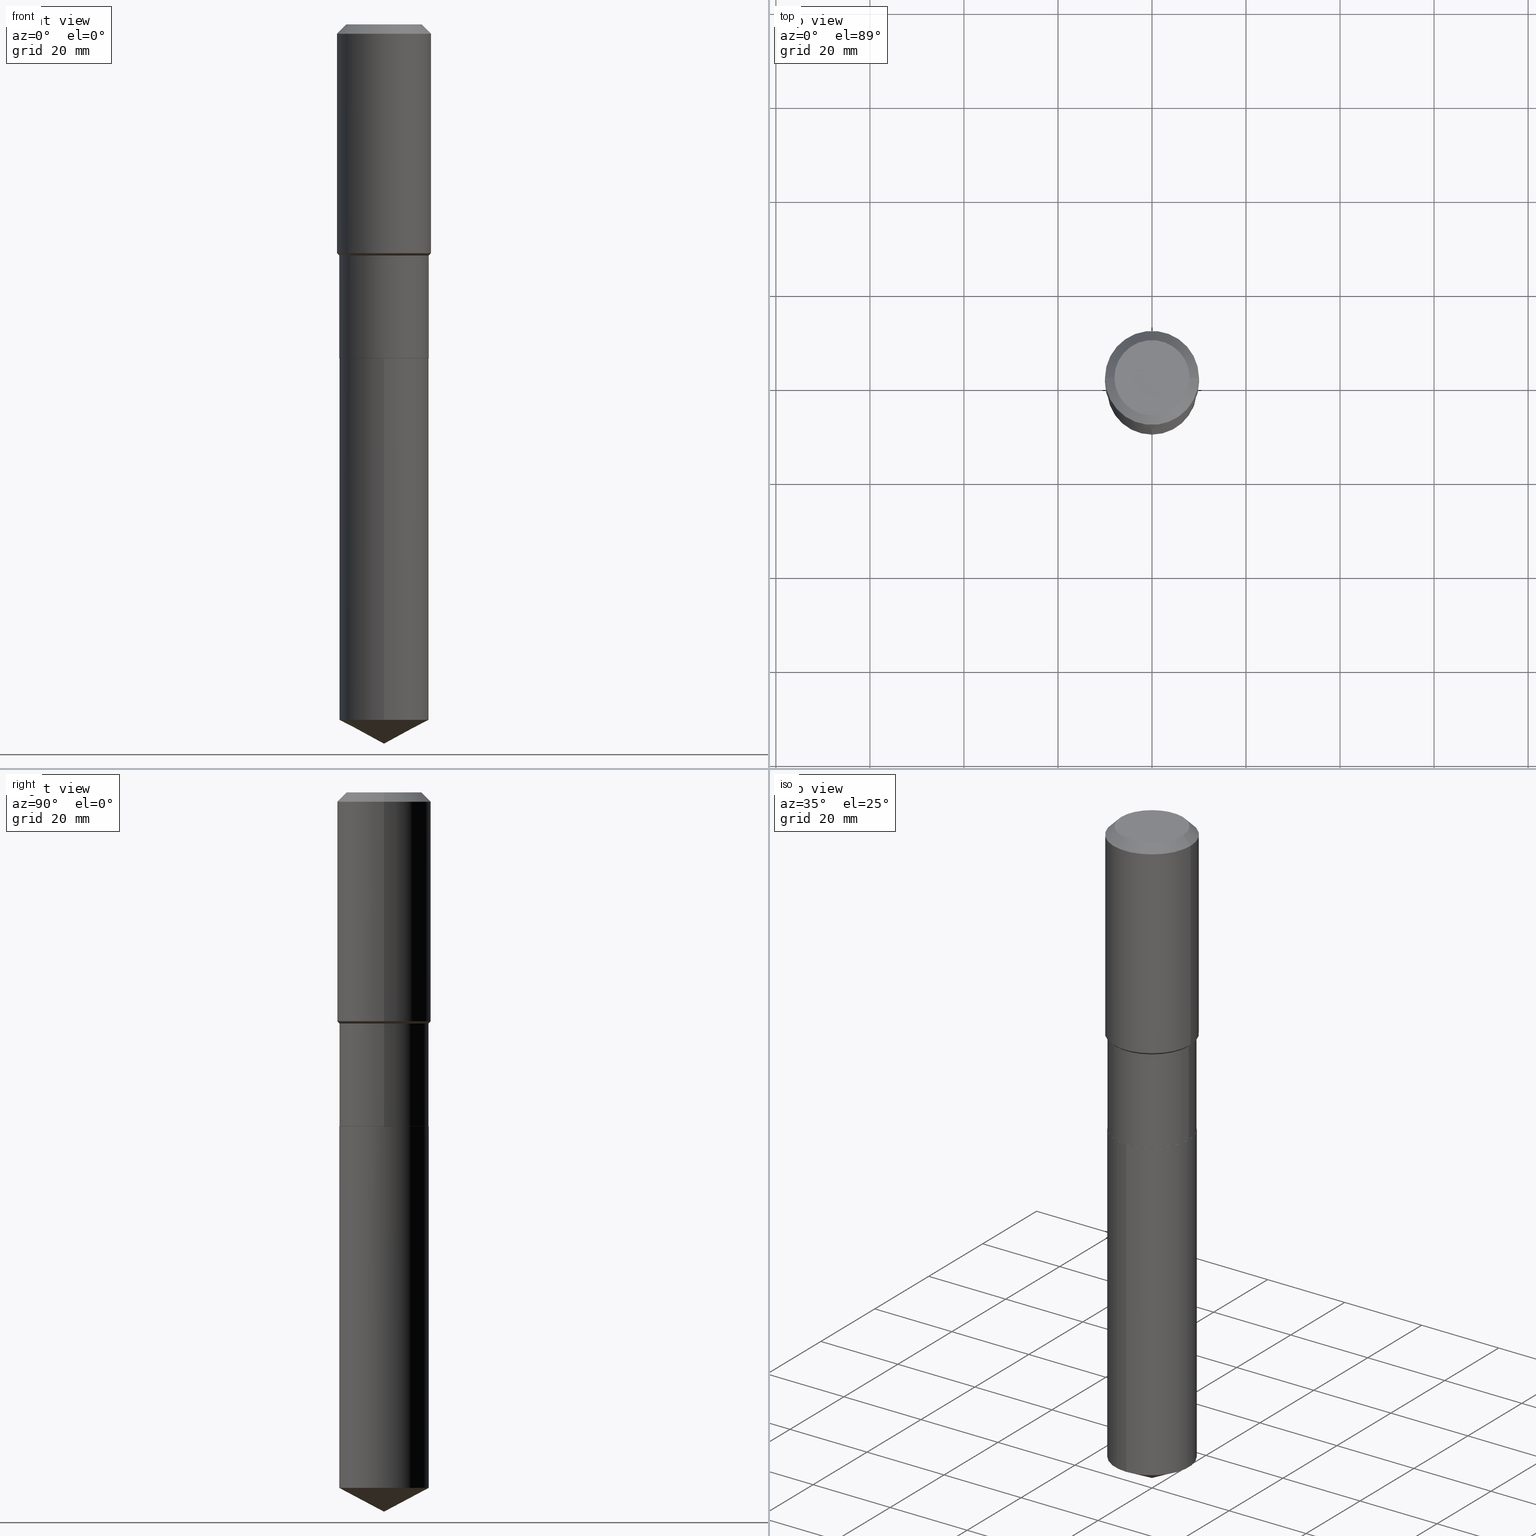
[diagram: canonical four-view strip — front | top / right | iso, engineering-drawing reading convention]
A machine part, canonical four-view strip (front | top / right | iso — engineering-drawing reading convention). The complete STEP part file that produces these views, byte-faithful:
ISO-10303-21;
HEADER;
FILE_DESCRIPTION (( 'STEP AP203' ),
    '1' );
FILE_NAME ('54835.STEP',
    '2024-04-24T16:09:18',
    ( '' ),
    ( '' ),
    'SwSTEP 2.0',
    'SolidWorks 2023',
    '' );
FILE_SCHEMA (( 'CONFIG_CONTROL_DESIGN' ));
ENDSEC;

DATA;
#1 = CARTESIAN_POINT ( 'NONE',  ( -0.3749999999999999445, -5.598055329271928860E-15, -1.935500000000000220 ) ) ;
#2 = CARTESIAN_POINT ( 'NONE',  ( 6.842421719706012162E-29, -9.769164786083122090E-15, -2.798000000000000043 ) ) ;
#3 = LOCAL_TIME ( 12, 9, 18.00000000000000000, #10 ) ;
#4 = DIRECTION ( 'NONE',  ( 2.445468806185136597E-29, -3.491481338843145583E-15, -1.000000000000000000 ) ) ;
#5 = CARTESIAN_POINT ( 'NONE',  ( 6.841198985302919360E-29, -9.767419045413699798E-15, -2.797499999999999876 ) ) ;
#6 = DIRECTION ( 'NONE',  ( -6.982962677686265922E-15, -1.000000000000000000, 2.913971193241880372E-15 ) ) ;
#7 = CYLINDRICAL_SURFACE ( 'NONE', #246, 0.3750000000000000555 ) ;
#8 = CLOSED_SHELL ( 'NONE', ( #487, #139, #297, #283, #358 ) ) ;
#9 = ORIENTED_EDGE ( 'NONE', *, *, #450, .F. ) ;
#10 = COORDINATED_UNIVERSAL_TIME_OFFSET ( 5, 0, .BEHIND. ) ;
#11 = ADVANCED_FACE ( 'NONE', ( #111 ), #411, .F. ) ;
#12 = CARTESIAN_POINT ( 'NONE',  ( 0.3937000000000001054, -2.749192406205084005E-15, 1.919750796630860452E-29 ) ) ;
#13 = PRODUCT_DEFINITION_SHAPE ( 'NONE', 'NONE',  #247 ) ;
#14 = COORDINATED_UNIVERSAL_TIME_OFFSET ( 5, 0, .BEHIND. ) ;
#15 = CARTESIAN_POINT ( 'NONE',  ( 4.687474607695669256E-29, -6.692471430294541138E-15, -1.916799999999999837 ) ) ;
#16 = EDGE_LOOP ( 'NONE', ( #387, #20, #373, #117 ) ) ;
#17 = LINE ( 'NONE', #177, #260 ) ;
#18 = CIRCLE ( 'NONE', #475, 0.3937000000000000499 ) ;
#19 = ORIENTED_EDGE ( 'NONE', *, *, #450, .T. ) ;
#20 = ORIENTED_EDGE ( 'NONE', *, *, #314, .T. ) ;
#21 = DIRECTION ( 'NONE',  ( 1.000000000000000000, -6.982962677686269866E-15, 0.000000000000000000 ) ) ;
#22 = EDGE_LOOP ( 'NONE', ( #66, #24, #221 ) ) ;
#23 = PERSON_AND_ORGANIZATION ( #478, #148 ) ;
#24 = ORIENTED_EDGE ( 'NONE', *, *, #455, .T. ) ;
#25 = AXIS2_PLACEMENT_3D ( 'NONE', #240, #321, #463 ) ;
#26 = VECTOR ( 'NONE', #126, 39.37007874015748854 ) ;
#27 = EDGE_LOOP ( 'NONE', ( #95, #481, #403, #9 ) ) ;
#28 = EDGE_CURVE ( 'NONE', #220, #469, #135, .T. ) ;
#29 = ORIENTED_EDGE ( 'NONE', *, *, #147, .F. ) ;
#30 = CARTESIAN_POINT ( 'NONE',  ( 0.000000000000000000, 0.000000000000000000, 0.000000000000000000 ) ) ;
#31 = SECURITY_CLASSIFICATION_LEVEL ( 'unclassified' ) ;
#32 = CARTESIAN_POINT ( 'NONE',  ( 1.473372978758260964E-28, -2.102952201092719459E-14, -6.024000000000000021 ) ) ;
#33 = ORIENTED_EDGE ( 'NONE', *, *, #418, .T. ) ;
#34 = CIRCLE ( 'NONE', #25, 0.3750000000000000555 ) ;
#35 = AXIS2_PLACEMENT_3D ( 'NONE', #142, #350, #130 ) ;
#36 = ADVANCED_FACE ( 'NONE', ( #386 ), #405, .T. ) ;
#37 = COORDINATED_UNIVERSAL_TIME_OFFSET ( 5, 0, .BEHIND. ) ;
#38 = CARTESIAN_POINT ( 'NONE',  ( -0.3937000000000000499, -6.862885847700110678E-16, -0.07874000000000049015 ) ) ;
#39 = DIRECTION ( 'NONE',  ( 2.438088387897960049E-29, -3.491481338843145188E-15, -1.000000000000000000 ) ) ;
#40 = DIRECTION ( 'NONE',  ( 0.7071067811864026886, -2.468850131080739687E-15, 0.7071067811866923458 ) ) ;
#41 = DIRECTION ( 'NONE',  ( 2.445468806185136597E-29, -3.491481338843145583E-15, -1.000000000000000000 ) ) ;
#42 = FACE_OUTER_BOUND ( 'NONE', #22, .T. ) ;
#43 = LINE ( 'NONE', #198, #277 ) ;
#44 = DIRECTION ( 'NONE',  ( -2.445835292823377995E-29, 3.490956509118059886E-15, 1.000000000000000000 ) ) ;
#45 = CLOSED_SHELL ( 'NONE', ( #218, #425, #436, #370, #164, #228, #389, #172, #36, #89, #11, #330 ) ) ;
#46 = CC_DESIGN_APPROVAL ( #156, ( #288 ) ) ;
#47 = LINE ( 'NONE', #456, #237 ) ;
#48 = VERTEX_POINT ( 'NONE', #375 ) ;
#49 = EDGE_CURVE ( 'NONE', #474, #155, #47, .T. ) ;
#50 = DIRECTION ( 'NONE',  ( -6.165590087286827352E-15, -0.8829475928589254341, 0.4694715627858938034 ) ) ;
#51 = APPROVAL_DATE_TIME ( #384, #156 ) ;
#52 = ADVANCED_BREP_SHAPE_REPRESENTATION ( '54835', ( #309, #144, #200 ), #65 ) ;
#53 = CARTESIAN_POINT ( 'NONE',  ( -0.3745000000000000551, -7.108182240661546503E-15, -2.798000000000000043 ) ) ;
#54 = DIRECTION ( 'NONE',  ( 1.000000000000000000, -6.982962677686265922E-15, 0.000000000000000000 ) ) ;
#55 = ORIENTED_EDGE ( 'NONE', *, *, #178, .T. ) ;
#56 = APPLICATION_CONTEXT ( 'configuration controlled 3d designs of mechanical parts and assemblies' ) ;
#57 = PRODUCT ( '54835', '54835', '', ( #235 ) ) ;
#58 = AXIS2_PLACEMENT_3D ( 'NONE', #83, #41, #151 ) ;
#59 = VERTEX_POINT ( 'NONE', #413 ) ;
#60 = DIRECTION ( 'NONE',  ( -2.445468806185136597E-29, 3.491481338843145583E-15, 1.000000000000000000 ) ) ;
#61 = CC_DESIGN_PERSON_AND_ORGANIZATION_ASSIGNMENT ( #399, #67, ( #247 ) ) ;
#62 = LINE ( 'NONE', #291, #374 ) ;
#63 = ORIENTED_EDGE ( 'NONE', *, *, #336, .T. ) ;
#64 = CIRCLE ( 'NONE', #320, 0.3750000000000000555 ) ;
#65 =( GEOMETRIC_REPRESENTATION_CONTEXT ( 3 ) GLOBAL_UNCERTAINTY_ASSIGNED_CONTEXT ( ( #376 ) ) GLOBAL_UNIT_ASSIGNED_CONTEXT ( ( #323, #250, #361 ) ) REPRESENTATION_CONTEXT ( 'NONE', 'WORKASPACE' ) );
#66 = ORIENTED_EDGE ( 'NONE', *, *, #396, .F. ) ;
#67 = PERSON_AND_ORGANIZATION_ROLE ( 'creator' ) ;
#68 = ORIENTED_EDGE ( 'NONE', *, *, #193, .F. ) ;
#69 = APPROVAL ( #248, 'UNSPECIFIED' ) ;
#70 = DIRECTION ( 'NONE',  ( -2.438088387897960049E-29, 3.491481338843145188E-15, 1.000000000000000000 ) ) ;
#71 = VECTOR ( 'NONE', #40, 39.37007874015748143 ) ;
#72 = PERSON_AND_ORGANIZATION_ROLE ( 'design_supplier' ) ;
#73 = DIRECTION ( 'NONE',  ( 1.000000000000000000, -6.982962677686266711E-15, 4.876176775795935793E-29 ) ) ;
#74 = ORIENTED_EDGE ( 'NONE', *, *, #401, .F. ) ;
#75 = FACE_OUTER_BOUND ( 'NONE', #258, .T. ) ;
#76 = ORIENTED_EDGE ( 'NONE', *, *, #305, .F. ) ;
#77 = APPROVAL_ROLE ( '' ) ;
#78 = CYLINDRICAL_SURFACE ( 'NONE', #137, 0.3937000000000001054 ) ;
#79 = ORIENTED_EDGE ( 'NONE', *, *, #49, .F. ) ;
#80 = CC_DESIGN_DATE_AND_TIME_ASSIGNMENT ( #183, #338, ( #247 ) ) ;
#81 = AXIS2_PLACEMENT_3D ( 'NONE', #2, #454, #129 ) ;
#82 = DIRECTION ( 'NONE',  ( -0.7071067811865474617, 7.493145998870352582E-15, 0.7071067811865474617 ) ) ;
#83 = CARTESIAN_POINT ( 'NONE',  ( 1.925562137990188729E-30, -2.749192406205110629E-16, -0.07874000000000049015 ) ) ;
#84 = CARTESIAN_POINT ( 'NONE',  ( -4.713871149261283817E-47, 6.730158695841841775E-33, 1.927594061857935365E-18 ) ) ;
#85 = CARTESIAN_POINT ( 'NONE',  ( 4.733204874371332632E-29, -6.757762131330909316E-15, -1.935500000000000220 ) ) ;
#86 = DIRECTION ( 'NONE',  ( 0.7071067811865453523, -7.319954787623248157E-15, -0.7071067811865496822 ) ) ;
#87 = DIRECTION ( 'NONE',  ( 1.000000000000000000, -6.982962677686266711E-15, 4.876176775795935793E-29 ) ) ;
#88 = DIRECTION ( 'NONE',  ( -6.982962677686267499E-15, -1.000000000000000000, 3.541896320645578618E-15 ) ) ;
#89 = ADVANCED_FACE ( 'NONE', ( #120 ), #269, .F. ) ;
#90 = AXIS2_PLACEMENT_3D ( 'NONE', #159, #377, #449 ) ;
#91 = CONICAL_SURFACE ( 'NONE', #359, 0.3749999999999999445, 0.7853981633974482790 ) ;
#92 = APPROVAL_PERSON_ORGANIZATION ( #402, #69, #355 ) ;
#93 = DIRECTION ( 'NONE',  ( -6.982962677686265922E-15, -1.000000000000000000, 2.913971193241880372E-15 ) ) ;
#94 = CARTESIAN_POINT ( 'NONE',  ( 6.842421719706012162E-29, -9.769164786083122090E-15, -2.798000000000000043 ) ) ;
#95 = ORIENTED_EDGE ( 'NONE', *, *, #28, .T. ) ;
#96 = EDGE_CURVE ( 'NONE', #469, #220, #180, .T. ) ;
#97 = FACE_OUTER_BOUND ( 'NONE', #186, .T. ) ;
#98 =( LENGTH_UNIT ( ) NAMED_UNIT ( * ) SI_UNIT ( $, .METRE. ) );
#99 = CONICAL_SURFACE ( 'NONE', #286, 74.04434902938317009, 1.082104136236484493 ) ;
#100 = PERSON_AND_ORGANIZATION ( #478, #148 ) ;
#101 = AXIS2_PLACEMENT_3D ( 'NONE', #318, #239, #88 ) ;
#102 = CC_DESIGN_APPROVAL ( #69, ( #247 ) ) ;
#103 = CARTESIAN_POINT ( 'NONE',  ( 6.842421719706012162E-29, -9.769164786083122090E-15, -2.798000000000000043 ) ) ;
#104 = CC_DESIGN_PERSON_AND_ORGANIZATION_ASSIGNMENT ( #407, #72, ( #366 ) ) ;
#105 = VERTEX_POINT ( 'NONE', #488 ) ;
#106 = VERTEX_POINT ( 'NONE', #1 ) ;
#107 = VECTOR ( 'NONE', #420, 39.37007874015748143 ) ;
#108 = LOCAL_TIME ( 12, 9, 18.00000000000000000, #37 ) ;
#109 = ORIENTED_EDGE ( 'NONE', *, *, #96, .T. ) ;
#110 = VERTEX_POINT ( 'NONE', #192 ) ;
#111 = FACE_OUTER_BOUND ( 'NONE', #184, .T. ) ;
#112 = DATE_AND_TIME ( #364, #484 ) ;
#113 = CARTESIAN_POINT ( 'NONE',  ( -9.427742298522567634E-47, 1.346031739168368355E-32, 3.855188123715870730E-18 ) ) ;
#114 = CIRCLE ( 'NONE', #381, 0.3750000000000000555 ) ;
#115 = DIRECTION ( 'NONE',  ( 1.000000000000000000, -6.982962677686266711E-15, 4.876176775795935793E-29 ) ) ;
#116 = EDGE_CURVE ( 'NONE', #181, #435, #379, .T. ) ;
#117 = ORIENTED_EDGE ( 'NONE', *, *, #161, .F. ) ;
#118 = DIRECTION ( 'NONE',  ( 1.000000000000000000, -6.982962677686263555E-15, 0.000000000000000000 ) ) ;
#119 = CARTESIAN_POINT ( 'NONE',  ( 6.842421719706012162E-29, -9.769164786083122090E-15, -2.798000000000000043 ) ) ;
#120 = FACE_OUTER_BOUND ( 'NONE', #419, .T. ) ;
#121 = FACE_OUTER_BOUND ( 'NONE', #265, .T. ) ;
#122 = AXIS2_PLACEMENT_3D ( 'NONE', #230, #4, #306 ) ;
#123 = VECTOR ( 'NONE', #304, 39.37007874015748143 ) ;
#124 = DIRECTION ( 'NONE',  ( 0.000000000000000000, 0.000000000000000000, 1.000000000000000000 ) ) ;
#125 = DIRECTION ( 'NONE',  ( -2.445468806185136597E-29, 3.491481338843145583E-15, 1.000000000000000000 ) ) ;
#126 = DIRECTION ( 'NONE',  ( 0.7071067811865474617, -2.468850131082256666E-15, 0.7071067811865474617 ) ) ;
#127 = CIRCLE ( 'NONE', #398, 0.3750000000000000555 ) ;
#128 = EDGE_CURVE ( 'NONE', #145, #217, #160, .T. ) ;
#129 = DIRECTION ( 'NONE',  ( 1.000000000000000000, -6.982962677686268288E-15, 0.000000000000000000 ) ) ;
#130 = DIRECTION ( 'NONE',  ( 1.000000000000000000, -6.982962677686266711E-15, 4.876176775795935793E-29 ) ) ;
#131 = DIRECTION ( 'NONE',  ( 1.000000000000000000, -6.982962677686263555E-15, 0.000000000000000000 ) ) ;
#132 = CARTESIAN_POINT ( 'NONE',  ( 4.687474607695669256E-29, -6.692471430294541138E-15, -1.916799999999999837 ) ) ;
#133 = FACE_OUTER_BOUND ( 'NONE', #214, .T. ) ;
#134 = CARTESIAN_POINT ( 'NONE',  ( -0.3749999999999999445, 2.664535259100375303E-15, -1.844600658845589318E-29 ) ) ;
#135 = CIRCLE ( 'NONE', #90, 0.3745000000000000551 ) ;
#136 = DIRECTION ( 'NONE',  ( 1.000000000000000000, -6.982962677686269866E-15, 0.000000000000000000 ) ) ;
#137 = AXIS2_PLACEMENT_3D ( 'NONE', #443, #409, #73 ) ;
#138 = ORIENTED_EDGE ( 'NONE', *, *, #340, .F. ) ;
#139 = ADVANCED_FACE ( 'NONE', ( #42 ), #99, .T. ) ;
#140 = PERSON_AND_ORGANIZATION_ROLE ( 'design_owner' ) ;
#141 = ORIENTED_EDGE ( 'NONE', *, *, #153, .T. ) ;
#142 = CARTESIAN_POINT ( 'NONE',  ( 0.000000000000000000, 0.000000000000000000, 0.000000000000000000 ) ) ;
#143 = CARTESIAN_POINT ( 'NONE',  ( 0.3749999999999999445, -9.376373135463257755E-15, -1.935500000000000220 ) ) ;
#144 = MANIFOLD_SOLID_BREP ( 'Body-Move/Copy2[2]', #45 ) ;
#145 = VERTEX_POINT ( 'NONE', #201 ) ;
#146 = CIRCLE ( 'NONE', #208, 0.3149600000000000177 ) ;
#147 = EDGE_CURVE ( 'NONE', #474, #242, #114, .T. ) ;
#148 = ORGANIZATION ( 'UNSPECIFIED', 'UNSPECIFIED', '' ) ;
#149 = CARTESIAN_POINT ( 'NONE',  ( 2.664535259100518086E-15, 0.3749999999999796829, -5.824608963126946648 ) ) ;
#150 = APPROVAL_ROLE ( '' ) ;
#151 = DIRECTION ( 'NONE',  ( -1.000000000000000000, 6.982962677686265922E-15, 0.000000000000000000 ) ) ;
#152 = ORIENTED_EDGE ( 'NONE', *, *, #349, .F. ) ;
#153 = EDGE_CURVE ( 'NONE', #155, #202, #34, .T. ) ;
#154 = DIRECTION ( 'NONE',  ( 1.000000000000000000, -6.982962677686265922E-15, 4.876223630392693006E-29 ) ) ;
#155 = VERTEX_POINT ( 'NONE', #327 ) ;
#156 = APPROVAL ( #412, 'UNSPECIFIED' ) ;
#157 = PERSON_AND_ORGANIZATION ( #478, #148 ) ;
#158 = PERSON_AND_ORGANIZATION ( #478, #148 ) ;
#159 = CARTESIAN_POINT ( 'NONE',  ( 6.842421719706012162E-29, -9.769164786083122090E-15, -2.798000000000000043 ) ) ;
#160 = LINE ( 'NONE', #452, #437 ) ;
#161 = EDGE_CURVE ( 'NONE', #181, #110, #173, .T. ) ;
#162 = DIRECTION ( 'NONE',  ( 1.000000000000000000, -6.982962677686268288E-15, 0.000000000000000000 ) ) ;
#163 = DIRECTION ( 'NONE',  ( 1.000000000000000000, -6.982962677686266711E-15, 0.000000000000000000 ) ) ;
#164 = ADVANCED_FACE ( 'NONE', ( #252 ), #263, .T. ) ;
#165 = COORDINATED_UNIVERSAL_TIME_OFFSET ( 5, 0, .BEHIND. ) ;
#166 = AXIS2_PLACEMENT_3D ( 'NONE', #380, #196, #480 ) ;
#167 = CC_DESIGN_PERSON_AND_ORGANIZATION_ASSIGNMENT ( #158, #188, ( #288 ) ) ;
#168 = DIRECTION ( 'NONE',  ( 2.445835292823377715E-29, -3.490956509118059886E-15, -1.000000000000000000 ) ) ;
#169 = ORIENTED_EDGE ( 'NONE', *, *, #128, .T. ) ;
#170 = DIRECTION ( 'NONE',  ( -2.445468806185136597E-29, 3.491481338843145583E-15, 1.000000000000000000 ) ) ;
#171 = DIRECTION ( 'NONE',  ( 1.000000000000000000, -6.982962677686265922E-15, 4.876223630392693006E-29 ) ) ;
#172 = ADVANCED_FACE ( 'NONE', ( #75 ), #371, .T. ) ;
#173 = CIRCLE ( 'NONE', #319, 0.3937000000000002164 ) ;
#174 = AXIS2_PLACEMENT_3D ( 'NONE', #353, #280, #131 ) ;
#175 = DIRECTION ( 'NONE',  ( -0.7071067811865453523, 2.468850131082234184E-15, -0.7071067811865496822 ) ) ;
#176 = APPLICATION_CONTEXT ( 'configuration controlled 3d designs of mechanical parts and assemblies' ) ;
#177 = CARTESIAN_POINT ( 'NONE',  ( -0.3937000000000000499, 2.474273165584572449E-15, -0.07874000000000049015 ) ) ;
#178 = EDGE_CURVE ( 'NONE', #242, #202, #43, .T. ) ;
#179 = ORIENTED_EDGE ( 'NONE', *, *, #267, .T. ) ;
#180 = CIRCLE ( 'NONE', #328, 0.3745000000000000551 ) ;
#181 = VERTEX_POINT ( 'NONE', #345 ) ;
#182 = AXIS2_PLACEMENT_3D ( 'NONE', #343, #385, #6 ) ;
#183 = DATE_AND_TIME ( #301, #3 ) ;
#184 = EDGE_LOOP ( 'NONE', ( #337, #331 ) ) ;
#185 = CARTESIAN_POINT ( 'NONE',  ( 0.3745000000000000551, -1.238428430887663068E-14, -2.798000000000000043 ) ) ;
#186 = EDGE_LOOP ( 'NONE', ( #472, #255, #29 ) ) ;
#187 = PRODUCT_RELATED_PRODUCT_CATEGORY ( 'detail', '', ( #57 ) ) ;
#188 = PERSON_AND_ORGANIZATION_ROLE ( 'classification_officer' ) ;
#189 = ORIENTED_EDGE ( 'NONE', *, *, #210, .T. ) ;
#190 = CIRCLE ( 'NONE', #166, 0.3749999999999999445 ) ;
#191 = CARTESIAN_POINT ( 'NONE',  ( -0.3745000000000000551, -7.105533013487436091E-15, -2.798000000000000043 ) ) ;
#192 = CARTESIAN_POINT ( 'NONE',  ( 0.3937000000000002164, -9.441663836499625933E-15, -1.916799999999999837 ) ) ;
#193 = EDGE_CURVE ( 'NONE', #145, #105, #197, .T. ) ;
#194 = CARTESIAN_POINT ( 'NONE',  ( -0.3937000000000001054, 2.797406750687515181E-15, -1.936584745033357016E-29 ) ) ;
#195 = DIRECTION ( 'NONE',  ( 1.000000000000000000, -6.982962677686263555E-15, 0.000000000000000000 ) ) ;
#196 = DIRECTION ( 'NONE',  ( -2.445468806185136597E-29, 3.491481338843145583E-15, 1.000000000000000000 ) ) ;
#197 = CIRCLE ( 'NONE', #461, 0.3149600000000000177 ) ;
#198 = CARTESIAN_POINT ( 'NONE',  ( -2.618611004132281780E-15, -0.3750000000000097700, -2.797999999999999154 ) ) ;
#199 = VECTOR ( 'NONE', #421, 39.37007874015748143 ) ;
#200 = AXIS2_PLACEMENT_3D ( 'NONE', #457, #124, #460 ) ;
#201 = CARTESIAN_POINT ( 'NONE',  ( 0.3149600000000000177, -2.568339875860642378E-15, 3.855188123732540039E-18 ) ) ;
#202 = VERTEX_POINT ( 'NONE', #326 ) ;
#203 = CYLINDRICAL_SURFACE ( 'NONE', #333, 0.3750000000000000555 ) ;
#204 = ORIENTED_EDGE ( 'NONE', *, *, #322, .F. ) ;
#205 = DIRECTION ( 'NONE',  ( -2.445468806185136877E-29, 3.491481338843145188E-15, 1.000000000000000000 ) ) ;
#206 = APPROVAL ( #264, 'UNSPECIFIED' ) ;
#207 = ORIENTED_EDGE ( 'NONE', *, *, #378, .T. ) ;
#208 = AXIS2_PLACEMENT_3D ( 'NONE', #486, #298, #154 ) ;
#209 = LINE ( 'NONE', #12, #430 ) ;
#210 = EDGE_CURVE ( 'NONE', #106, #181, #307, .T. ) ;
#211 = DIRECTION ( 'NONE',  ( -2.445468806185136597E-29, 3.491481338843145583E-15, 1.000000000000000000 ) ) ;
#212 = ORIENTED_EDGE ( 'NONE', *, *, #275, .T. ) ;
#213 = AXIS2_PLACEMENT_3D ( 'NONE', #30, #125, #87 ) ;
#214 = EDGE_LOOP ( 'NONE', ( #207, #251, #332, #339 ) ) ;
#215 = CARTESIAN_POINT ( 'NONE',  ( 0.3745000000000000551, -1.238428430887663068E-14, -2.798000000000000043 ) ) ;
#216 = DIRECTION ( 'NONE',  ( -2.445835292823377715E-29, 3.490956509118059886E-15, 1.000000000000000000 ) ) ;
#217 = VERTEX_POINT ( 'NONE', #229 ) ;
#218 = ADVANCED_FACE ( 'NONE', ( #268 ), #424, .T. ) ;
#219 = ORIENTED_EDGE ( 'NONE', *, *, #349, .T. ) ;
#220 = VERTEX_POINT ( 'NONE', #215 ) ;
#221 = ORIENTED_EDGE ( 'NONE', *, *, #378, .F. ) ;
#222 = AXIS2_PLACEMENT_3D ( 'NONE', #103, #168, #285 ) ;
#223 = FACE_OUTER_BOUND ( 'NONE', #335, .T. ) ;
#224 = ORIENTED_EDGE ( 'NONE', *, *, #116, .F. ) ;
#225 = FACE_OUTER_BOUND ( 'NONE', #244, .T. ) ;
#226 = DIRECTION ( 'NONE',  ( 1.000000000000000000, -6.982962677686265922E-15, 4.876176775795935793E-29 ) ) ;
#227 = CIRCLE ( 'NONE', #483, 0.3750000000000000555 ) ;
#228 = ADVANCED_FACE ( 'NONE', ( #249 ), #395, .T. ) ;
#229 = CARTESIAN_POINT ( 'NONE',  ( 0.3937000000000000499, -3.024111646825594378E-15, -0.07874000000000049015 ) ) ;
#230 = CARTESIAN_POINT ( 'NONE',  ( 1.925562137990188729E-30, -2.749192406205110629E-16, -0.07874000000000049015 ) ) ;
#231 = ORIENTED_EDGE ( 'NONE', *, *, #116, .T. ) ;
#232 = CARTESIAN_POINT ( 'NONE',  ( 4.733204874371332632E-29, -6.757762131330909316E-15, -1.935500000000000220 ) ) ;
#233 = DIRECTION ( 'NONE',  ( -2.445468806185136597E-29, 3.491481338843145583E-15, 1.000000000000000000 ) ) ;
#234 = CARTESIAN_POINT ( 'NONE',  ( -8.156004168955828605E-28, 1.164082421579453333E-13, 33.34607874015748052 ) ) ;
#235 = MECHANICAL_CONTEXT ( 'NONE', #176, 'mechanical' ) ;
#236 = EDGE_CURVE ( 'NONE', #110, #181, #287, .T. ) ;
#237 = VECTOR ( 'NONE', #416, 39.37007874015748143 ) ;
#238 = AXIS2_PLACEMENT_3D ( 'NONE', #94, #233, #394 ) ;
#239 = DIRECTION ( 'NONE',  ( -2.445835292823377995E-29, 3.490956509118059886E-15, 1.000000000000000000 ) ) ;
#240 = CARTESIAN_POINT ( 'NONE',  ( 6.842421719706012162E-29, -9.769164786083122090E-15, -2.798000000000000043 ) ) ;
#241 = CC_DESIGN_DATE_AND_TIME_ASSIGNMENT ( #257, #310, ( #288 ) ) ;
#242 = VERTEX_POINT ( 'NONE', #282 ) ;
#243 = APPLICATION_PROTOCOL_DEFINITION ( 'international standard', 'config_control_design', 1994, #176 ) ;
#244 = EDGE_LOOP ( 'NONE', ( #68, #169, #63, #367 ) ) ;
#245 = FACE_OUTER_BOUND ( 'NONE', #464, .T. ) ;
#246 = AXIS2_PLACEMENT_3D ( 'NONE', #388, #272, #316 ) ;
#247 = PRODUCT_DEFINITION ( 'UNKNOWN', '', #366, #490 ) ;
#248 = APPROVAL_STATUS ( 'not_yet_approved' ) ;
#249 = FACE_OUTER_BOUND ( 'NONE', #400, .T. ) ;
#250 =( NAMED_UNIT ( * ) PLANE_ANGLE_UNIT ( ) SI_UNIT ( $, .RADIAN. ) );
#251 = ORIENTED_EDGE ( 'NONE', *, *, #49, .T. ) ;
#252 = FACE_OUTER_BOUND ( 'NONE', #365, .T. ) ;
#253 = ORIENTED_EDGE ( 'NONE', *, *, #153, .F. ) ;
#254 = VECTOR ( 'NONE', #276, 39.37007874015748143 ) ;
#255 = ORIENTED_EDGE ( 'NONE', *, *, #396, .T. ) ;
#256 = ORIENTED_EDGE ( 'NONE', *, *, #322, .T. ) ;
#257 = DATE_AND_TIME ( #308, #108 ) ;
#258 = EDGE_LOOP ( 'NONE', ( #224, #444, #357, #204 ) ) ;
#259 = PERSON_AND_ORGANIZATION_ROLE ( 'creator' ) ;
#260 = VECTOR ( 'NONE', #175, 39.37007874015748143 ) ;
#261 = ORIENTED_EDGE ( 'NONE', *, *, #418, .F. ) ;
#262 = LOCAL_TIME ( 12, 9, 18.00000000000000000, #165 ) ;
#263 = CYLINDRICAL_SURFACE ( 'NONE', #482, 0.3749999999999999445 ) ;
#264 = APPROVAL_STATUS ( 'not_yet_approved' ) ;
#265 = EDGE_LOOP ( 'NONE', ( #33, #189, #442, #76 ) ) ;
#266 = CARTESIAN_POINT ( 'NONE',  ( 1.473371180396803176E-28, -2.102952201092719143E-14, -6.024000000000000021 ) ) ;
#267 = EDGE_CURVE ( 'NONE', #48, #59, #64, .T. ) ;
#268 = FACE_OUTER_BOUND ( 'NONE', #27, .T. ) ;
#269 = PLANE ( 'NONE',  #392 ) ;
#270 = DIRECTION ( 'NONE',  ( -2.445468806185136597E-29, 3.491481338843145583E-15, 1.000000000000000000 ) ) ;
#271 = DIRECTION ( 'NONE',  ( -2.445468806185136597E-29, 3.491481338843145583E-15, 1.000000000000000000 ) ) ;
#272 = DIRECTION ( 'NONE',  ( -2.445835292823377995E-29, 3.490956509118059886E-15, 1.000000000000000000 ) ) ;
#273 = DIRECTION ( 'NONE',  ( -2.445835292823377995E-29, 3.490956509118059886E-15, 1.000000000000000000 ) ) ;
#274 = FACE_OUTER_BOUND ( 'NONE', #303, .T. ) ;
#275 = EDGE_CURVE ( 'NONE', #105, #435, #17, .T. ) ;
#276 = DIRECTION ( 'NONE',  ( -2.445468806185136877E-29, 3.491481338843145188E-15, 1.000000000000000000 ) ) ;
#277 = VECTOR ( 'NONE', #216, 39.37007874015748143 ) ;
#278 = VECTOR ( 'NONE', #50, 39.37007874015748854 ) ;
#279 = CC_DESIGN_SECURITY_CLASSIFICATION ( #288, ( #366 ) ) ;
#280 = DIRECTION ( 'NONE',  ( -2.445468806185136597E-29, 3.491481338843145583E-15, 1.000000000000000000 ) ) ;
#281 = LINE ( 'NONE', #134, #107 ) ;
#282 = CARTESIAN_POINT ( 'NONE',  ( -2.618611004132207233E-15, -0.3750000000000203726, -5.824608963126944872 ) ) ;
#283 = ADVANCED_FACE ( 'NONE', ( #274 ), #203, .T. ) ;
#284 = DIRECTION ( 'NONE',  ( 1.000000000000000000, -6.982962677686265922E-15, 0.000000000000000000 ) ) ;
#285 = DIRECTION ( 'NONE',  ( 6.982962677686265922E-15, 1.000000000000000000, -3.490956509118059886E-15 ) ) ;
#286 = AXIS2_PLACEMENT_3D ( 'NONE', #234, #313, #382 ) ;
#287 = CIRCLE ( 'NONE', #329, 0.3937000000000002164 ) ;
#288 = SECURITY_CLASSIFICATION ( '', '', #31 ) ;
#289 = CALENDAR_DATE ( 2024, 24, 4 ) ;
#290 = CARTESIAN_POINT ( 'NONE',  ( 6.841198985302919360E-29, -9.767419045413699798E-15, -2.797499999999999876 ) ) ;
#291 = CARTESIAN_POINT ( 'NONE',  ( 0.3749999999999999445, -2.618611004132349622E-15, 1.828566290923475642E-29 ) ) ;
#292 = DATE_AND_TIME ( #289, #408 ) ;
#293 = ORIENTED_EDGE ( 'NONE', *, *, #128, .F. ) ;
#294 = CONICAL_SURFACE ( 'NONE', #101, 74.04434902938317009, 1.082104136236484493 ) ;
#295 = EDGE_LOOP ( 'NONE', ( #296, #141 ) ) ;
#296 = ORIENTED_EDGE ( 'NONE', *, *, #473, .T. ) ;
#297 = ADVANCED_FACE ( 'NONE', ( #97 ), #294, .T. ) ;
#298 = DIRECTION ( 'NONE',  ( -2.445468806185136597E-29, 3.491481338843145583E-15, 1.000000000000000000 ) ) ;
#299 = ORIENTED_EDGE ( 'NONE', *, *, #147, .T. ) ;
#300 = CARTESIAN_POINT ( 'NONE',  ( 0.000000000000000000, 0.000000000000000000, 0.000000000000000000 ) ) ;
#301 = CALENDAR_DATE ( 2024, 24, 4 ) ;
#302 = LINE ( 'NONE', #32, #123 ) ;
#303 = EDGE_LOOP ( 'NONE', ( #79, #299, #55, #253 ) ) ;
#304 = DIRECTION ( 'NONE',  ( 6.273719981627758188E-15, 0.8829475928589286537, 0.4694715627858875306 ) ) ;
#305 = EDGE_CURVE ( 'NONE', #477, #110, #458, .T. ) ;
#306 = DIRECTION ( 'NONE',  ( -1.000000000000000000, 6.982962677686265922E-15, 0.000000000000000000 ) ) ;
#307 = LINE ( 'NONE', #414, #468 ) ;
#308 = CALENDAR_DATE ( 2024, 24, 4 ) ;
#309 = MANIFOLD_SOLID_BREP ( 'Body-Move/Copy2[1]', #8 ) ;
#310 = DATE_TIME_ROLE ( 'classification_date' ) ;
#311 = DIRECTION ( 'NONE',  ( -6.982962677686265922E-15, -1.000000000000000000, 2.913971193241880372E-15 ) ) ;
#312 = CALENDAR_DATE ( 2024, 24, 4 ) ;
#313 = DIRECTION ( 'NONE',  ( -2.445835292823377995E-29, 3.490956509118059886E-15, 1.000000000000000000 ) ) ;
#314 = EDGE_CURVE ( 'NONE', #106, #477, #383, .T. ) ;
#315 = CARTESIAN_POINT ( 'NONE',  ( 1.424500873929746689E-28, -2.033492504646619205E-14, -5.824608963126945760 ) ) ;
#316 = DIRECTION ( 'NONE',  ( -6.982962677686265922E-15, -1.000000000000000000, 2.913971193241880372E-15 ) ) ;
#317 = DIRECTION ( 'NONE',  ( -2.445468806185136597E-29, 3.491481338843145583E-15, 1.000000000000000000 ) ) ;
#318 = CARTESIAN_POINT ( 'NONE',  ( -8.156004168955828605E-28, 1.164082421579453333E-13, 33.34607874015748052 ) ) ;
#319 = AXIS2_PLACEMENT_3D ( 'NONE', #132, #467, #136 ) ;
#320 = AXIS2_PLACEMENT_3D ( 'NONE', #290, #211, #356 ) ;
#321 = DIRECTION ( 'NONE',  ( -2.445835292823377995E-29, 3.490956509118059886E-15, 1.000000000000000000 ) ) ;
#322 = EDGE_CURVE ( 'NONE', #435, #217, #352, .T. ) ;
#323 =( CONVERSION_BASED_UNIT ( 'INCH', #351 ) LENGTH_UNIT ( ) NAMED_UNIT ( #347 ) );
#324 = CARTESIAN_POINT ( 'NONE',  ( 6.842421719706012162E-29, -9.769164786083122090E-15, -2.798000000000000043 ) ) ;
#325 = EDGE_LOOP ( 'NONE', ( #293, #441, #212, #256 ) ) ;
#326 = CARTESIAN_POINT ( 'NONE',  ( -2.618611004132281780E-15, -0.3750000000000097700, -2.797999999999999154 ) ) ;
#327 = CARTESIAN_POINT ( 'NONE',  ( 2.664535259100518875E-15, 0.3749999999999902855, -2.798000000000000931 ) ) ;
#328 = AXIS2_PLACEMENT_3D ( 'NONE', #119, #271, #162 ) ;
#329 = AXIS2_PLACEMENT_3D ( 'NONE', #15, #360, #21 ) ;
#330 = ADVANCED_FACE ( 'NONE', ( #245 ), #406, .T. ) ;
#331 = ORIENTED_EDGE ( 'NONE', *, *, #96, .F. ) ;
#332 = ORIENTED_EDGE ( 'NONE', *, *, #473, .F. ) ;
#333 = AXIS2_PLACEMENT_3D ( 'NONE', #324, #44, #466 ) ;
#334 = COORDINATED_UNIVERSAL_TIME_OFFSET ( 5, 0, .BEHIND. ) ;
#335 = EDGE_LOOP ( 'NONE', ( #476, #231, #397, #138 ) ) ;
#336 = EDGE_CURVE ( 'NONE', #217, #435, #18, .T. ) ;
#337 = ORIENTED_EDGE ( 'NONE', *, *, #28, .F. ) ;
#338 = DATE_TIME_ROLE ( 'creation_date' ) ;
#339 = ORIENTED_EDGE ( 'NONE', *, *, #178, .F. ) ;
#340 = EDGE_CURVE ( 'NONE', #110, #217, #209, .T. ) ;
#341 = AXIS2_PLACEMENT_3D ( 'NONE', #85, #489, #118 ) ;
#342 = ORIENTED_EDGE ( 'NONE', *, *, #401, .T. ) ;
#343 = CARTESIAN_POINT ( 'NONE',  ( 6.842421719706012162E-29, -9.769164786083122090E-15, -2.798000000000000043 ) ) ;
#344 = LINE ( 'NONE', #453, #278 ) ;
#345 = CARTESIAN_POINT ( 'NONE',  ( -0.3937000000000002164, -3.895064679607025563E-15, -1.916799999999999837 ) ) ;
#346 = CARTESIAN_POINT ( 'NONE',  ( 0.3749999999999999445, -9.376373135463257755E-15, -1.935500000000000220 ) ) ;
#347 = DIMENSIONAL_EXPONENTS ( 1.000000000000000000, 0.000000000000000000, 0.000000000000000000, 0.000000000000000000, 0.000000000000000000, 0.000000000000000000, 0.000000000000000000 ) ;
#348 = PLANE ( 'NONE',  #222 ) ;
#349 = EDGE_CURVE ( 'NONE', #59, #106, #281, .T. ) ;
#350 = DIRECTION ( 'NONE',  ( -2.445468806185136597E-29, 3.491481338843145583E-15, 1.000000000000000000 ) ) ;
#351 = LENGTH_MEASURE_WITH_UNIT ( LENGTH_MEASURE( 0.02539999999999999897 ), #98 );
#352 = CIRCLE ( 'NONE', #446, 0.3937000000000000499 ) ;
#353 = CARTESIAN_POINT ( 'NONE',  ( 4.733204874371332632E-29, -6.757762131330909316E-15, -1.935500000000000220 ) ) ;
#354 = DIRECTION ( 'NONE',  ( -2.445468806185136597E-29, 3.491481338843145583E-15, 1.000000000000000000 ) ) ;
#355 = APPROVAL_ROLE ( '' ) ;
#356 = DIRECTION ( 'NONE',  ( 1.000000000000000000, -6.982962677686266711E-15, 0.000000000000000000 ) ) ;
#357 = ORIENTED_EDGE ( 'NONE', *, *, #340, .T. ) ;
#358 = ADVANCED_FACE ( 'NONE', ( #462 ), #348, .F. ) ;
#359 = AXIS2_PLACEMENT_3D ( 'NONE', #232, #317, #195 ) ;
#360 = DIRECTION ( 'NONE',  ( -2.445468806185136597E-29, 3.491481338843145583E-15, 1.000000000000000000 ) ) ;
#361 =( NAMED_UNIT ( * ) SI_UNIT ( $, .STERADIAN. ) SOLID_ANGLE_UNIT ( ) );
#362 = ORIENTED_EDGE ( 'NONE', *, *, #193, .T. ) ;
#363 = EDGE_CURVE ( 'NONE', #48, #477, #62, .T. ) ;
#364 = CALENDAR_DATE ( 2024, 24, 4 ) ;
#365 = EDGE_LOOP ( 'NONE', ( #179, #219, #261, #447 ) ) ;
#366 = PRODUCT_DEFINITION_FORMATION_WITH_SPECIFIED_SOURCE ( 'ANY', '', #57, .NOT_KNOWN. ) ;
#367 = ORIENTED_EDGE ( 'NONE', *, *, #275, .F. ) ;
#368 = LINE ( 'NONE', #185, #71 ) ;
#369 = CARTESIAN_POINT ( 'NONE',  ( 6.842421719706012162E-29, -9.769164786083122090E-15, -2.798000000000000043 ) ) ;
#370 = ADVANCED_FACE ( 'NONE', ( #121 ), #91, .T. ) ;
#371 = CYLINDRICAL_SURFACE ( 'NONE', #213, 0.3937000000000001054 ) ;
#372 = APPROVAL_DATE_TIME ( #112, #206 ) ;
#373 = ORIENTED_EDGE ( 'NONE', *, *, #305, .T. ) ;
#374 = VECTOR ( 'NONE', #427, 39.37007874015748143 ) ;
#375 = CARTESIAN_POINT ( 'NONE',  ( 0.3750000000000000555, -1.238603004954604981E-14, -2.797499999999999876 ) ) ;
#376 = UNCERTAINTY_MEASURE_WITH_UNIT (LENGTH_MEASURE( 1.000000000000000082E-05 ), #323, 'distance_accuracy_value', 'NONE');
#377 = DIRECTION ( 'NONE',  ( -2.445468806185136597E-29, 3.491481338843145583E-15, 1.000000000000000000 ) ) ;
#378 = EDGE_CURVE ( 'NONE', #242, #474, #227, .T. ) ;
#379 = LINE ( 'NONE', #194, #254 ) ;
#380 = CARTESIAN_POINT ( 'NONE',  ( 4.733204874371332632E-29, -6.757762131330909316E-15, -1.935500000000000220 ) ) ;
#381 = AXIS2_PLACEMENT_3D ( 'NONE', #315, #423, #93 ) ;
#382 = DIRECTION ( 'NONE',  ( -6.982962677686267499E-15, -1.000000000000000000, 3.541896320645578618E-15 ) ) ;
#383 = CIRCLE ( 'NONE', #174, 0.3749999999999999445 ) ;
#384 = DATE_AND_TIME ( #312, #262 ) ;
#385 = DIRECTION ( 'NONE',  ( -2.445835292823377995E-29, 3.490956509118059886E-15, 1.000000000000000000 ) ) ;
#386 = FACE_OUTER_BOUND ( 'NONE', #325, .T. ) ;
#387 = ORIENTED_EDGE ( 'NONE', *, *, #210, .F. ) ;
#388 = CARTESIAN_POINT ( 'NONE',  ( 6.842421719706012162E-29, -9.769164786083122090E-15, -2.798000000000000043 ) ) ;
#389 = ADVANCED_FACE ( 'NONE', ( #422 ), #439, .T. ) ;
#390 = CARTESIAN_POINT ( 'NONE',  ( 1.925562137990188729E-30, -2.749192406205110629E-16, -0.07874000000000049015 ) ) ;
#391 = ORIENTED_EDGE ( 'NONE', *, *, #479, .F. ) ;
#392 = AXIS2_PLACEMENT_3D ( 'NONE', #84, #39, #448 ) ;
#393 = CIRCLE ( 'NONE', #182, 0.3750000000000000555 ) ;
#394 = DIRECTION ( 'NONE',  ( 1.000000000000000000, -6.982962677686268288E-15, 0.000000000000000000 ) ) ;
#395 = CYLINDRICAL_SURFACE ( 'NONE', #35, 0.3749999999999999445 ) ;
#396 = EDGE_CURVE ( 'NONE', #404, #242, #344, .T. ) ;
#397 = ORIENTED_EDGE ( 'NONE', *, *, #336, .F. ) ;
#398 = AXIS2_PLACEMENT_3D ( 'NONE', #5, #270, #163 ) ;
#399 = PERSON_AND_ORGANIZATION ( #478, #148 ) ;
#400 = EDGE_LOOP ( 'NONE', ( #152, #342, #438, #434 ) ) ;
#401 = EDGE_CURVE ( 'NONE', #59, #48, #127, .T. ) ;
#402 = PERSON_AND_ORGANIZATION ( #478, #148 ) ;
#403 = ORIENTED_EDGE ( 'NONE', *, *, #267, .F. ) ;
#404 = VERTEX_POINT ( 'NONE', #266 ) ;
#405 = CONICAL_SURFACE ( 'NONE', #122, 0.3937000000000000499, 0.7853981633974452814 ) ;
#406 = CONICAL_SURFACE ( 'NONE', #238, 0.3745000000000000551, 0.7853981633972434429 ) ;
#407 = PERSON_AND_ORGANIZATION ( #478, #148 ) ;
#408 = LOCAL_TIME ( 12, 9, 18.00000000000000000, #14 ) ;
#409 = DIRECTION ( 'NONE',  ( -2.445468806185136597E-29, 3.491481338843145583E-15, 1.000000000000000000 ) ) ;
#410 = ORIENTED_EDGE ( 'NONE', *, *, #432, .T. ) ;
#411 = PLANE ( 'NONE',  #451 ) ;
#412 = APPROVAL_STATUS ( 'not_yet_approved' ) ;
#413 = CARTESIAN_POINT ( 'NONE',  ( -0.3750000000000000555, -5.598055329271928071E-15, -2.797499999999999876 ) ) ;
#414 = CARTESIAN_POINT ( 'NONE',  ( -0.3749999999999999445, -4.093226872230533619E-15, -1.935500000000000220 ) ) ;
#415 = CONICAL_SURFACE ( 'NONE', #58, 0.3937000000000000499, 0.7853981633974452814 ) ;
#416 = DIRECTION ( 'NONE',  ( -2.445835292823377715E-29, 3.490956509118059886E-15, 1.000000000000000000 ) ) ;
#417 = CARTESIAN_POINT ( 'NONE',  ( 1.424500873929746689E-28, -2.033492504646619205E-14, -5.824608963126945760 ) ) ;
#418 = EDGE_CURVE ( 'NONE', #477, #106, #190, .T. ) ;
#419 = EDGE_LOOP ( 'NONE', ( #410, #362 ) ) ;
#420 = DIRECTION ( 'NONE',  ( -2.445468806185136877E-29, 3.491481338843145188E-15, 1.000000000000000000 ) ) ;
#421 = DIRECTION ( 'NONE',  ( -0.7071067811864026886, 7.493145998869830357E-15, 0.7071067811866923458 ) ) ;
#422 = FACE_OUTER_BOUND ( 'NONE', #16, .T. ) ;
#423 = DIRECTION ( 'NONE',  ( -2.445835292823377995E-29, 3.490956509118059886E-15, 1.000000000000000000 ) ) ;
#424 = CONICAL_SURFACE ( 'NONE', #81, 0.3745000000000000551, 0.7853981633972434429 ) ;
#425 = ADVANCED_FACE ( 'NONE', ( #225 ), #415, .T. ) ;
#426 = LINE ( 'NONE', #53, #199 ) ;
#427 = DIRECTION ( 'NONE',  ( -2.445468806185136877E-29, 3.491481338843145188E-15, 1.000000000000000000 ) ) ;
#428 = CARTESIAN_POINT ( 'NONE',  ( 1.925562137990188729E-30, -2.749192406205110629E-16, -0.07874000000000049015 ) ) ;
#429 = CC_DESIGN_PERSON_AND_ORGANIZATION_ASSIGNMENT ( #23, #259, ( #366 ) ) ;
#430 = VECTOR ( 'NONE', #205, 39.37007874015748143 ) ;
#431 = CC_DESIGN_APPROVAL ( #206, ( #366 ) ) ;
#432 = EDGE_CURVE ( 'NONE', #105, #145, #146, .T. ) ;
#433 = APPROVAL_DATE_TIME ( #292, #69 ) ;
#434 = ORIENTED_EDGE ( 'NONE', *, *, #314, .F. ) ;
#435 = VERTEX_POINT ( 'NONE', #38 ) ;
#436 = ADVANCED_FACE ( 'NONE', ( #223 ), #78, .T. ) ;
#437 = VECTOR ( 'NONE', #86, 39.37007874015748143 ) ;
#438 = ORIENTED_EDGE ( 'NONE', *, *, #363, .T. ) ;
#439 = CONICAL_SURFACE ( 'NONE', #341, 0.3749999999999999445, 0.7853981633974482790 ) ;
#440 = APPROVAL_PERSON_ORGANIZATION ( #157, #156, #77 ) ;
#441 = ORIENTED_EDGE ( 'NONE', *, *, #432, .F. ) ;
#442 = ORIENTED_EDGE ( 'NONE', *, *, #236, .F. ) ;
#443 = CARTESIAN_POINT ( 'NONE',  ( 0.000000000000000000, 0.000000000000000000, 0.000000000000000000 ) ) ;
#444 = ORIENTED_EDGE ( 'NONE', *, *, #161, .T. ) ;
#445 = DIRECTION ( 'NONE',  ( -2.445468806185136597E-29, 3.491481338843145583E-15, 1.000000000000000000 ) ) ;
#446 = AXIS2_PLACEMENT_3D ( 'NONE', #428, #170, #284 ) ;
#447 = ORIENTED_EDGE ( 'NONE', *, *, #363, .F. ) ;
#448 = DIRECTION ( 'NONE',  ( -1.000000000000000000, 6.982962677686265922E-15, -4.876176775795935793E-29 ) ) ;
#449 = DIRECTION ( 'NONE',  ( 1.000000000000000000, -6.982962677686268288E-15, 0.000000000000000000 ) ) ;
#450 = EDGE_CURVE ( 'NONE', #220, #48, #368, .T. ) ;
#451 = AXIS2_PLACEMENT_3D ( 'NONE', #369, #70, #226 ) ;
#452 = CARTESIAN_POINT ( 'NONE',  ( 0.3937000000000000499, -2.975897302343163203E-15, -0.07874000000000049015 ) ) ;
#453 = CARTESIAN_POINT ( 'NONE',  ( 1.473166094474043009E-28, -2.103245895806877580E-14, -6.024000000000000021 ) ) ;
#454 = DIRECTION ( 'NONE',  ( -2.445468806185136597E-29, 3.491481338843145583E-15, 1.000000000000000000 ) ) ;
#455 = EDGE_CURVE ( 'NONE', #404, #474, #302, .T. ) ;
#456 = CARTESIAN_POINT ( 'NONE',  ( 2.664535259100443933E-15, 0.3749999999999902855, -2.798000000000000931 ) ) ;
#457 = CARTESIAN_POINT ( 'NONE',  ( 0.000000000000000000, 0.000000000000000000, 0.000000000000000000 ) ) ;
#458 = LINE ( 'NONE', #346, #26 ) ;
#459 = SHAPE_DEFINITION_REPRESENTATION ( #13, #52 ) ;
#460 = DIRECTION ( 'NONE',  ( 1.000000000000000000, 0.000000000000000000, 0.000000000000000000 ) ) ;
#461 = AXIS2_PLACEMENT_3D ( 'NONE', #113, #354, #171 ) ;
#462 = FACE_OUTER_BOUND ( 'NONE', #295, .T. ) ;
#463 = DIRECTION ( 'NONE',  ( -6.982962677686265922E-15, -1.000000000000000000, 2.913971193241880372E-15 ) ) ;
#464 = EDGE_LOOP ( 'NONE', ( #391, #109, #19, #74 ) ) ;
#465 = CC_DESIGN_PERSON_AND_ORGANIZATION_ASSIGNMENT ( #100, #140, ( #57 ) ) ;
#466 = DIRECTION ( 'NONE',  ( -6.982962677686265922E-15, -1.000000000000000000, 2.913971193241880372E-15 ) ) ;
#467 = DIRECTION ( 'NONE',  ( -2.445468806185136597E-29, 3.491481338843145583E-15, 1.000000000000000000 ) ) ;
#468 = VECTOR ( 'NONE', #82, 39.37007874015748854 ) ;
#469 = VERTEX_POINT ( 'NONE', #191 ) ;
#470 = APPROVAL_PERSON_ORGANIZATION ( #485, #206, #150 ) ;
#471 = APPLICATION_PROTOCOL_DEFINITION ( 'international standard', 'config_control_design', 1994, #56 ) ;
#472 = ORIENTED_EDGE ( 'NONE', *, *, #455, .F. ) ;
#473 = EDGE_CURVE ( 'NONE', #202, #155, #393, .T. ) ;
#474 = VERTEX_POINT ( 'NONE', #149 ) ;
#475 = AXIS2_PLACEMENT_3D ( 'NONE', #390, #60, #54 ) ;
#476 = ORIENTED_EDGE ( 'NONE', *, *, #236, .T. ) ;
#477 = VERTEX_POINT ( 'NONE', #143 ) ;
#478 = PERSON ( 'UNSPECIFIED', 'UNSPECIFIED', 'UNSPECIFIED', ('UNSPECIFIED'), ('UNSPECIFIED'), ('UNSPECIFIED') ) ;
#479 = EDGE_CURVE ( 'NONE', #469, #59, #426, .T. ) ;
#480 = DIRECTION ( 'NONE',  ( 1.000000000000000000, -6.982962677686263555E-15, 0.000000000000000000 ) ) ;
#481 = ORIENTED_EDGE ( 'NONE', *, *, #479, .T. ) ;
#482 = AXIS2_PLACEMENT_3D ( 'NONE', #300, #445, #115 ) ;
#483 = AXIS2_PLACEMENT_3D ( 'NONE', #417, #273, #311 ) ;
#484 = LOCAL_TIME ( 12, 9, 18.00000000000000000, #334 ) ;
#485 = PERSON_AND_ORGANIZATION ( #478, #148 ) ;
#486 = CARTESIAN_POINT ( 'NONE',  ( -9.427742298522567634E-47, 1.346031739168368355E-32, 3.855188123715870730E-18 ) ) ;
#487 = ADVANCED_FACE ( 'NONE', ( #133 ), #7, .T. ) ;
#488 = CARTESIAN_POINT ( 'NONE',  ( -0.3149600000000000177, 2.336813545274319235E-15, 3.855188123700009542E-18 ) ) ;
#489 = DIRECTION ( 'NONE',  ( -2.445468806185136597E-29, 3.491481338843145583E-15, 1.000000000000000000 ) ) ;
#490 = DESIGN_CONTEXT ( 'detailed design', #56, 'design' ) ;
ENDSEC;
END-ISO-10303-21;
